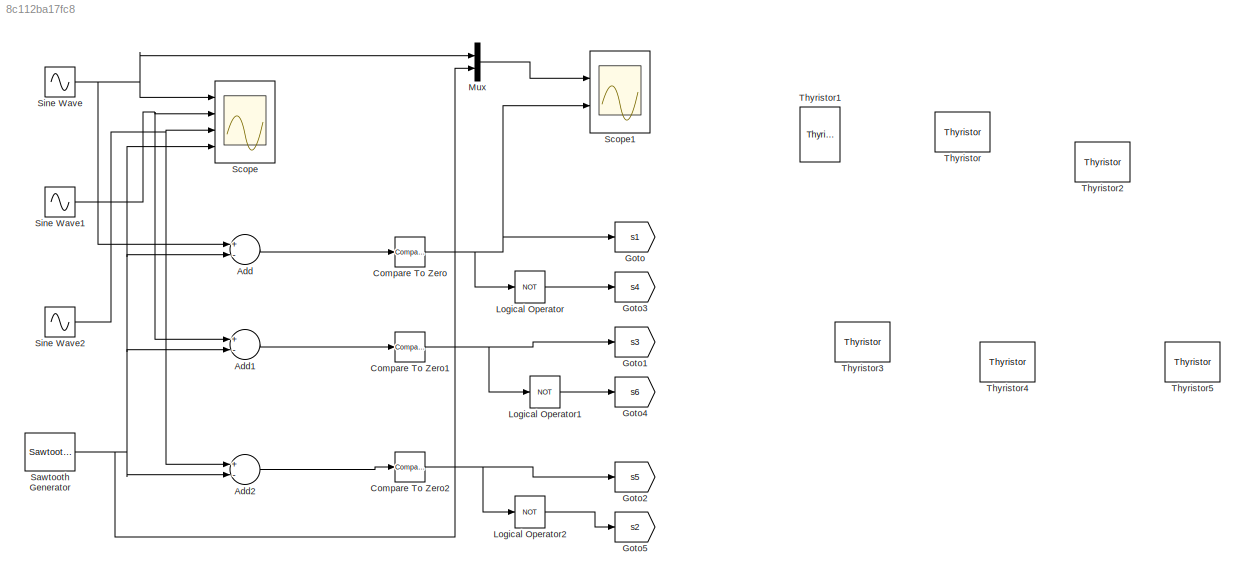
MODEL slx_8c112ba17fc8
KIND model
CONFIG AbsTol = auto
CONFIG FixedStep = auto
CONFIG MaxStep = auto
CONFIG MinStep = auto
CONFIG RelTol = 1e-3
CONFIG SampleTimeConstraint = Unconstrained
CONFIG Solver = ode45
CONFIG SolverMode = Auto
CONFIG SolverName = ode45
CONFIG StartTime = 0.0
CONFIG StopTime = 10.0
BLOCK [Sum] Add
  InputSameDT = off
  Inputs = +-
  OutDataTypeStr = Inherit: Inherit via internal rule
  Ports = [2, 1]
  SaturateOnIntegerOverflow = off
BLOCK [Sum] Add1
  InputSameDT = off
  Inputs = +-
  OutDataTypeStr = Inherit: Inherit via internal rule
  Ports = [2, 1]
  SaturateOnIntegerOverflow = off
BLOCK [Sum] Add2
  InputSameDT = off
  Inputs = +-
  OutDataTypeStr = Inherit: Inherit via internal rule
  Ports = [2, 1]
  SaturateOnIntegerOverflow = off
BLOCK [Reference] Compare To Zero  REF=simulink/Logic and Bit
Operations/Compare
To Zero
  OutDataTypeStr = boolean
  Ports = [1, 1]
  SourceBlock = simulink/Logic and Bit\nOperations/Compare\nTo Zero
  SourceType = Compare To Zero
  ZeroCross = on
  relop = >=
BLOCK [Reference] Compare To Zero1  REF=simulink/Logic and Bit
Operations/Compare
To Zero
  OutDataTypeStr = boolean
  Ports = [1, 1]
  SourceBlock = simulink/Logic and Bit\nOperations/Compare\nTo Zero
  SourceType = Compare To Zero
  ZeroCross = on
  relop = >=
BLOCK [Reference] Compare To Zero2  REF=simulink/Logic and Bit
Operations/Compare
To Zero
  OutDataTypeStr = boolean
  Ports = [1, 1]
  SourceBlock = simulink/Logic and Bit\nOperations/Compare\nTo Zero
  SourceType = Compare To Zero
  ZeroCross = on
  relop = >=
BLOCK [Goto] Goto
  GotoTag = s1
BLOCK [Goto] Goto1
  GotoTag = s3
BLOCK [Goto] Goto2
  GotoTag = s5
BLOCK [Goto] Goto3
  GotoTag = s4
BLOCK [Goto] Goto4
  GotoTag = s6
BLOCK [Goto] Goto5
  GotoTag = s2
BLOCK [Logic] Logical Operator
  AllPortsSameDT = off
  Operator = NOT
  OutDataTypeStr = boolean
  Ports = [1, 1]
BLOCK [Logic] Logical Operator1
  AllPortsSameDT = off
  Operator = NOT
  OutDataTypeStr = boolean
  Ports = [1, 1]
BLOCK [Logic] Logical Operator2
  AllPortsSameDT = off
  Operator = NOT
  OutDataTypeStr = boolean
  Ports = [1, 1]
BLOCK [Mux] Mux
  DisplayOption = bar
  Inputs = 2
  Ports = [2, 1]
BLOCK [Reference] Sawtooth Generator  REF=powerlib_meascontrol/Pulse & Signal
Generators/Sawtooth
Generator
  Freq = 1e3
  Phase = 180
  Ports = [0, 1]
  SourceBlock = powerlib_meascontrol/Pulse & Signal\nGenerators/Sawtooth\nGenerator
  SourceType = Sawtooth Generator
  Ts = 0
BLOCK [Scope] Scope
  Floating = off
  NumInputPorts = 4
  Ports = [4]
  TimeRange = 0.06606551724138576
  YMax = 1~1~-0.7222222222222214~1
  YMin = -1~-1~-0.7857142857142856~-1
  ZoomMode = yonly
BLOCK [Scope] Scope1
  Floating = off
  NumInputPorts = 2
  Ports = [2]
  SaveName = ScopeData1
  TimeRange = 0.06606551724138576
  YMax = 1~5
  YMin = -1~-5
  ZoomMode = yonly
BLOCK [Sin] Sine Wave
  Frequency = 2*pi*50
  Ports = [0, 1]
  SampleTime = 0
BLOCK [Sin] Sine Wave1
  Frequency = 2*pi*50
  Phase = 2*pi/3
  Ports = [0, 1]
  SampleTime = 0
BLOCK [Sin] Sine Wave2
  Frequency = 2*pi*50
  Phase = -2*pi/3
  Ports = [0, 1]
  SampleTime = 0
BLOCK [Reference] Thyristor  REF=powerlib/Power
Electronics/Thyristor
  Cs = 250e-9
  IC = 0
  Lon = 0
  Measurements = on
  Ports = [1, 1, 0, 0, 0, 1, 1]
  Ron = 0.001
  Rs = 500
  SourceBlock = powerlib/Power\nElectronics/Thyristor
  SourceType = Thyristor
  Vf = 0.8
BLOCK [Reference] Thyristor1  REF=powerlib/Power
Electronics/Thyristor
  Cs = 250e-9
  IC = 0
  Lon = 0
  Measurements = on
  Ports = [1, 1, 0, 0, 0, 1, 1]
  Ron = 0.001
  Rs = 500
  SourceBlock = powerlib/Power\nElectronics/Thyristor
  SourceType = Thyristor
  Vf = 0.8
BLOCK [Reference] Thyristor2  REF=powerlib/Power
Electronics/Thyristor
  Cs = 250e-9
  IC = 0
  Lon = 0
  Measurements = on
  Ports = [1, 1, 0, 0, 0, 1, 1]
  Ron = 0.001
  Rs = 500
  SourceBlock = powerlib/Power\nElectronics/Thyristor
  SourceType = Thyristor
  Vf = 0.8
BLOCK [Reference] Thyristor3  REF=powerlib/Power
Electronics/Thyristor
  Cs = 250e-9
  IC = 0
  Lon = 0
  Measurements = on
  Ports = [1, 1, 0, 0, 0, 1, 1]
  Ron = 0.001
  Rs = 500
  SourceBlock = powerlib/Power\nElectronics/Thyristor
  SourceType = Thyristor
  Vf = 0.8
BLOCK [Reference] Thyristor4  REF=powerlib/Power
Electronics/Thyristor
  Cs = 250e-9
  IC = 0
  Lon = 0
  Measurements = on
  Ports = [1, 1, 0, 0, 0, 1, 1]
  Ron = 0.001
  Rs = 500
  SourceBlock = powerlib/Power\nElectronics/Thyristor
  SourceType = Thyristor
  Vf = 0.8
BLOCK [Reference] Thyristor5  REF=powerlib/Power
Electronics/Thyristor
  Cs = 250e-9
  IC = 0
  Lon = 0
  Measurements = on
  Ports = [1, 1, 0, 0, 0, 1, 1]
  Ron = 0.001
  Rs = 500
  SourceBlock = powerlib/Power\nElectronics/Thyristor
  SourceType = Thyristor
  Vf = 0.8
LINE Add1:1 -> Compare To Zero1:1
LINE Add2:1 -> Compare To Zero2:1
LINE Add:1 -> Compare To Zero:1
NET Compare To Zero1:1 -> Goto1:1, Logical Operator1:1
NET Compare To Zero2:1 -> Goto2:1, Logical Operator2:1
NET Compare To Zero:1 -> Goto:1, Logical Operator:1, Scope1:2
LINE Logical Operator1:1 -> Goto4:1
LINE Logical Operator2:1 -> Goto5:1
LINE Logical Operator:1 -> Goto3:1
LINE Mux:1 -> Scope1:1
NET Sawtooth Generator:1 -> Add1:2, Add2:2, Add:2, Mux:2, Scope:4
NET Sine Wave1:1 -> Add1:1, Scope:2
NET Sine Wave2:1 -> Add2:1, Scope:3
NET Sine Wave:1 -> Add:1, Mux:1, Scope:1
note: NET lines group one-source signal fan-out (src -> all destinations, sorted); 1:1 wires keep LINE
